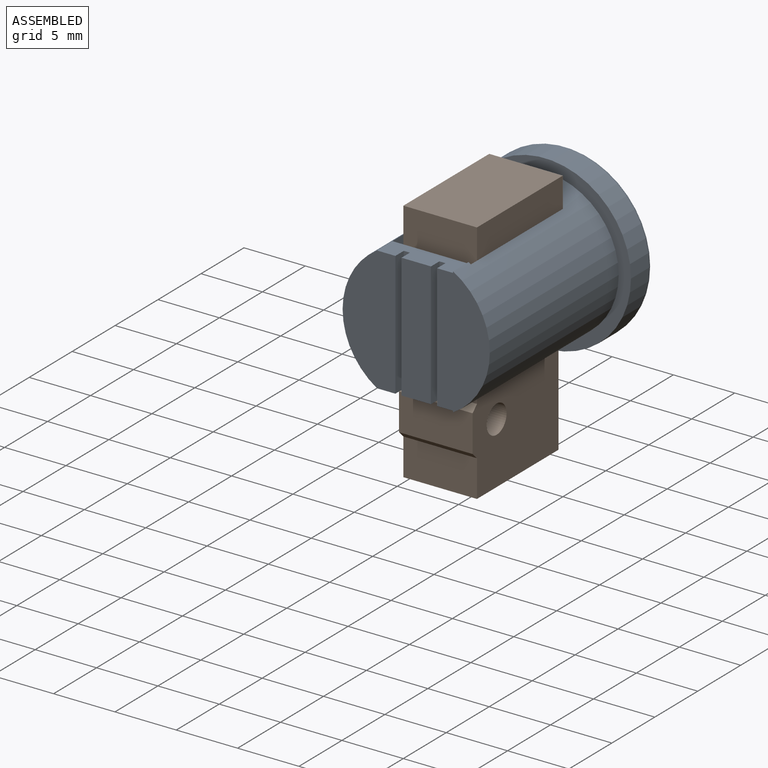
[diagram: assembled view]
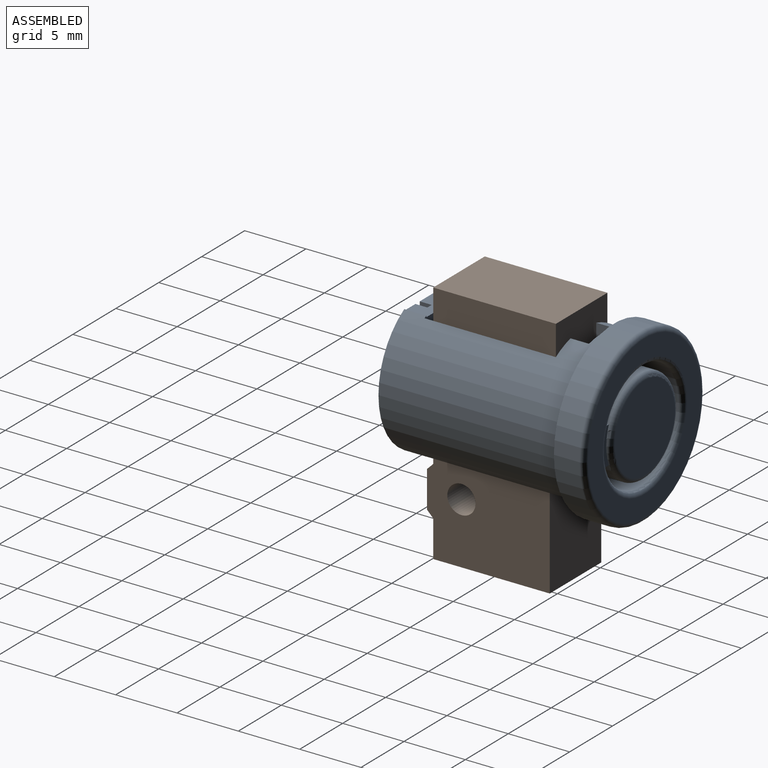
[diagram: assembled view, second angle]
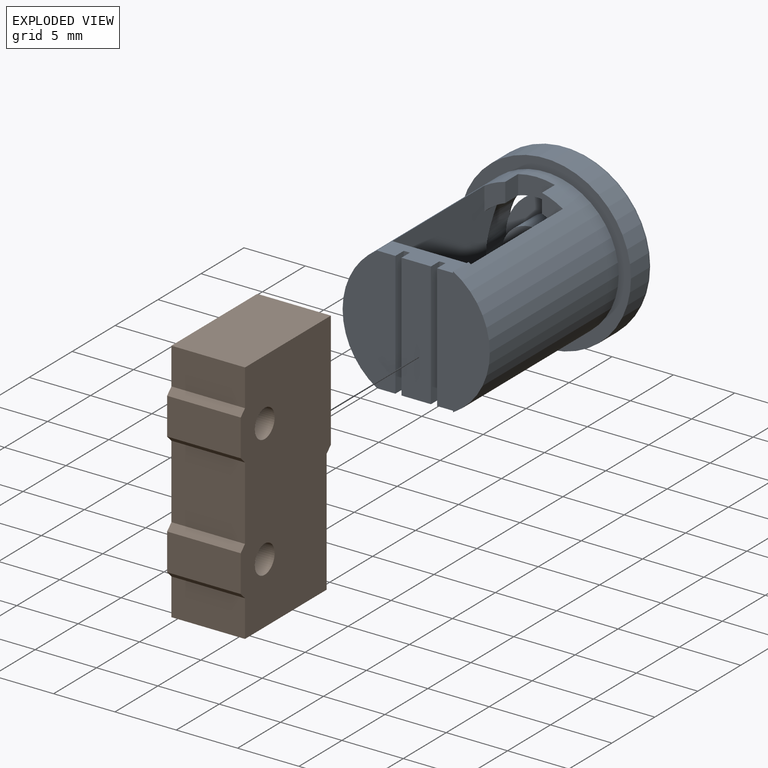
[diagram: exploded view]
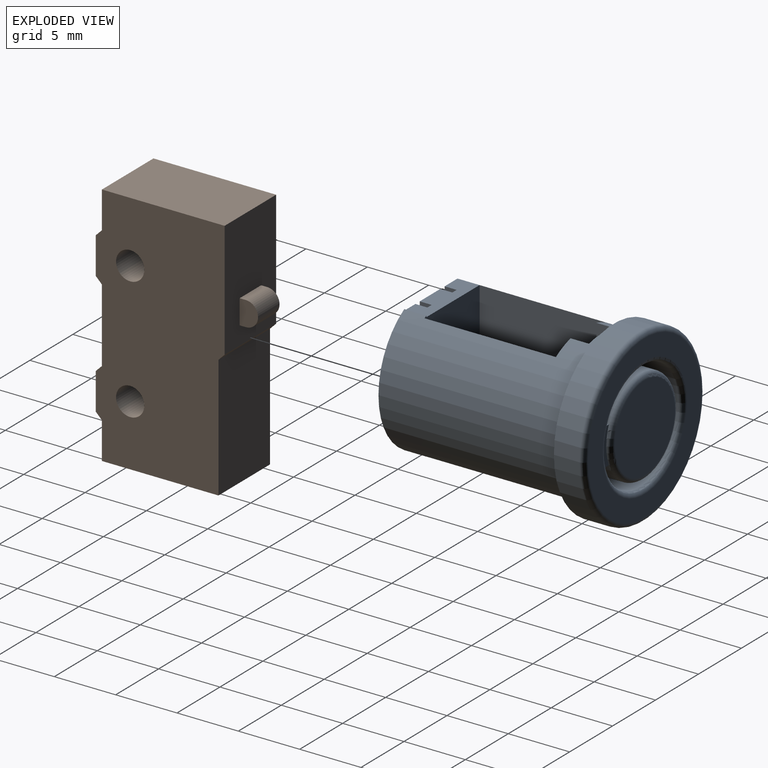
[diagram: exploded view, second angle]
ASSEMBLY  parts=2 mates=2
PART A: 41 faces, bbox 15.2x15.2x17.5 mm
  f0: cylinder r=6mm len=15mm, axis (0,0,1), area 396.4mm2, adj f1,f3,f4,f11,f13,f16,f17,f18
  f1: plane 10.39x4.3mm, normal (0,0,-1), area 35.3mm2, adj f0,f8,f34,f35,f36,f37
  f2: plane 10.15x2.4mm, normal (0,0,-1), area 24.4mm2, adj f7,f9,f34,f36
  f3: plane 10.15x4.3mm, normal (0,0,-1), area 35.3mm2, adj f0,f5,f34,f36
  f4: plane 10.39x6.4mm, normal (0,0,1), area 65mm2, adj f0,f17,f19,f34,f35,f36,f37
  f5: plane 10.15x0.98mm, normal (-1,0,0), area 9.9mm2, adj f3,f6,f34,f36
  f6: plane 10.15x0.5mm, normal (0,0,-1), area 5.1mm2, adj f5,f7,f34,f36
  f7: plane 10.15x0.98mm, normal (1,0,0), area 9.9mm2, adj f2,f6,f34,f36
  f8: plane 10.15x0.98mm, normal (1,0,0), area 9.9mm2, adj f1,f10,f34,f36
  f9: plane 10.15x0.98mm, normal (-1,0,0), area 9.9mm2, adj f2,f10,f34,f36
  f10: plane 10.15x0.5mm, normal (0,0,-1), area 5.1mm2, adj f8,f9,f34,f36
  f11: plane 2.65x1.7mm, normal (0,0,-1), area 2.9mm2, adj f0,f12,f19,f22
  f12: cylinder r=4.5mm len=9mm, axis (0,0,-1), area 106.1mm2, adj f11,f13,f17,f18,f19,f20,f21,f22
  f13: plane 2.65x1.7mm, normal (0,0,-1), area 2.9mm2, adj f0,f12,f17,f23
  f14: cylinder r=7mm len=14mm, axis (0,0,-1), area 92.4mm2, adj f16,f40
  f15: plane 13.2x13.2mm, normal (0,0,1), area 61.4mm2, adj f39,f40
  f16: plane 14x14mm, normal (0,0,-1), area 40.8mm2, adj f0,f14
  f17: plane 12.2x10.15mm, normal (-1,0,0), area 111.9mm2, adj f0,f4,f12,f13,f18,f20
  f18: plane 6.4x2.84mm, normal (0,0,-1), area 10.3mm2, adj f0,f12,f17,f19
  f19: plane 12.2x10.15mm, normal (1,0,0), area 111.9mm2, adj f0,f4,f11,f12,f18,f21
  f20: cone r=3mm half-angle=45deg, axis (0,0,1), area 8mm2, adj f12,f17
  f21: cone r=3mm half-angle=45deg, axis (0,0,1), area 8mm2, adj f12,f19
  f22: plane 1.57x1.5mm, normal (1,0,0), area 2.4mm2, adj f0,f11,f12,f24
  f23: plane 1.57x1.5mm, normal (-1,0,0), area 2.4mm2, adj f0,f12,f13,f24
  f24: plane 3x1.76mm, normal (0,0,-1), area 4.6mm2, adj f0,f12,f22,f23
  f25: cylinder r=3.9mm len=7.8mm, axis (0,0,1), area 25.1mm2, adj f26,f28,f29,f30,f38
  f26: plane 7.8x7.8mm, normal (0,0,-1), area 28.1mm2, adj f25,f32
  f27: plane 7x7mm, normal (0,0,1), area 38.5mm2, adj f38
  f28: plane 0.64x0.6mm, normal (0,-1,0), area 0.4mm2, adj f12,f25,f30,f31
  f29: plane 0.64x0.6mm, normal (0,1,0), area 0.4mm2, adj f12,f25,f30,f31
  f30: plane 3x0.9mm, normal (0,0,-1), area 1.8mm2, adj f12,f25,f28,f29
  f31: plane 3x0.9mm, normal (0,0,1), area 1.8mm2, adj f28,f29,f38,f39
  f32: cylinder r=2.5mm len=5mm, axis (0,0,1), area 39.3mm2, adj f26,f33
  f33: plane 5x5mm, normal (0,0,-1), area 19.6mm2, adj f32
  f34: plane 6.2x1.8mm, normal (0,-1,0), area 10.2mm2, adj f0,f1,f2,f3,f4,f5,f6,f7
  f35: plane 1.8x0.12mm, normal (1,0,0), area 0.2mm2, adj f0,f1,f4,f34
  f36: plane 6.2x1.8mm, normal (0,1,0), area 10.2mm2, adj f0,f1,f2,f3,f4,f5,f6,f7
  f37: plane 1.8x0.12mm, normal (1,0,0), area 0.2mm2, adj f0,f1,f4,f36
  f38: torus R=3.5mm, axis (0,0,1), area 14.8mm2, adj f25,f27,f31
  f39: torus R=4.9mm, axis (0,0,1), area 18.3mm2, adj f12,f15,f31
  f40: torus R=6.6mm, axis (0,0,1), area 27.1mm2, adj f14,f15
PART B: 23 faces, bbox 20x6x12 mm
  f0: plane 9.5x6mm, normal (0,0,1), area 52mm2, adj f10,f11,f14,f15,f16,f17,f18,f19
  f1: plane 6x3mm, normal (0,0,-1), area 18mm2, adj f2,f13,f14,f15
  f2: plane 6x0.5mm, normal (0.71,0,-0.71), area 4.2mm2, adj f1,f3,f14,f15
  f3: plane 6x6mm, normal (0,0,-1), area 36mm2, adj f2,f4,f14,f15
  f4: plane 6x0.5mm, normal (-0.71,0,-0.71), area 4.2mm2, adj f3,f5,f14,f15
  f5: plane 6x3mm, normal (0,0,-1), area 18mm2, adj f4,f6,f14,f15
  f6: plane 6x0.5mm, normal (0.71,0,-0.71), area 4.2mm2, adj f5,f7,f14,f15
  f7: plane 6x3mm, normal (0,0,-1), area 18mm2, adj f6,f8,f14,f15
  f8: plane 9.5x6mm, normal (1,0,0), area 57mm2, adj f7,f9,f14,f15
  f9: plane 10x6mm, normal (0,0,1), area 60mm2, adj f8,f10,f14,f15
  f10: plane 6x0.5mm, normal (0.71,0,0.71), area 4.2mm2, adj f0,f9,f14,f15
  f11: plane 10x6mm, normal (-1,0,0), area 60mm2, adj f0,f12,f14,f15
  f12: plane 6x3mm, normal (0,0,-1), area 18mm2, adj f11,f13,f14,f15
  f13: plane 6x0.5mm, normal (-0.71,0,-0.71), area 4.2mm2, adj f1,f12,f14,f15
  f14: plane 20x10.5mm, normal (0,-1,0), area 190.1mm2, adj f0,f1,f2,f3,f4,f5,f6,f7
  f15: plane 20x10.5mm, normal (0,1,0), area 190.1mm2, adj f0,f1,f2,f3,f4,f5,f6,f7
  f16: plane 2.5x0.5mm, normal (1,0,0), area 1.3mm2, adj f0,f17,f19,f20
  f17: plane 2x1.5mm, normal (0,1,0), area 2.6mm2, adj f0,f16,f18,f20
  f18: plane 2.5x0.5mm, normal (-1,0,0), area 1.3mm2, adj f0,f17,f19,f20
  f19: plane 2x1.5mm, normal (0,-1,0), area 2.6mm2, adj f0,f16,f18,f20
  f20: cylinder r=1mm len=2.5mm, axis (0,-1,0), area 7.9mm2, adj f16,f17,f18,f19
  f21: cylinder r=1.15mm len=6mm, axis (0,-1,0), area 43.4mm2, adj f14,f15
  f22: cylinder r=1.15mm len=6mm, axis (0,-1,0), area 43.4mm2, adj f14,f15
PLACE A rot(axis=(0,-0.71,-0.71),180deg) t=(-12.14,8.12,-19.75)mm
PLACE B rot(axis=(-0.58,0.58,0.58),120deg) t=(-14.94,-4.38,-12.23)mm
MATE planar A.f13 <-> B.f0  axis (0,-1,0) through (-14.51,5.62,-15.12)mm
MATE planar B.f14 <-> A.f19  axis (1,0,0) through (-8.94,0.52,-22.09)mm
